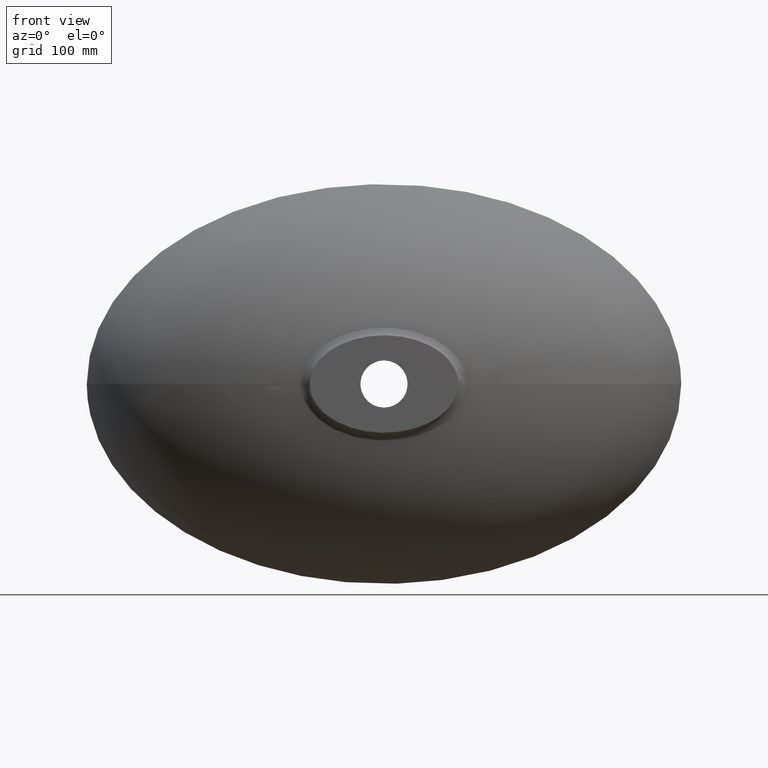
[diagram: clean part render]
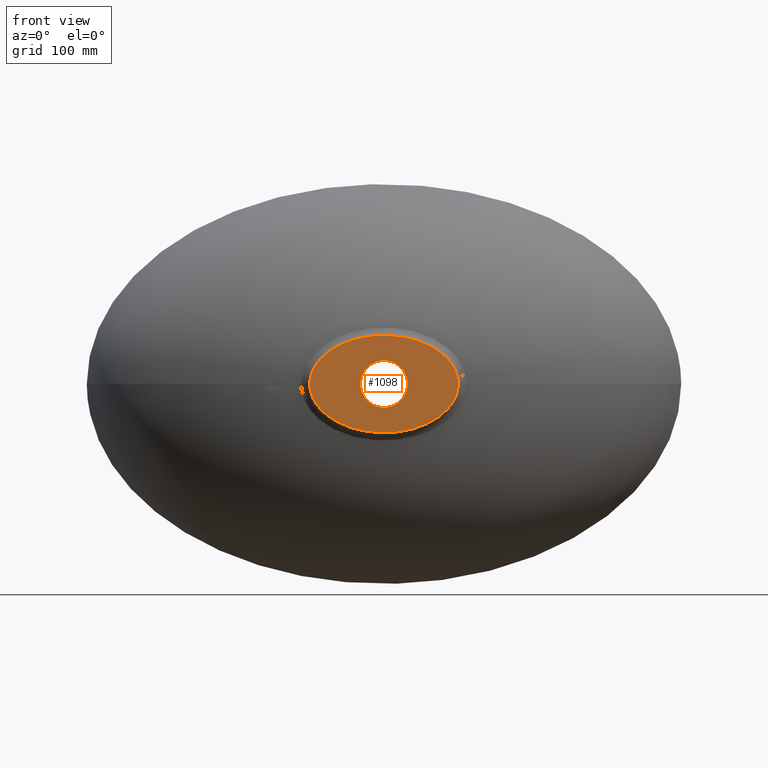
[diagram: same view with one face highlighted and labeled with its STEP entity id]
A machine part, front view. The second image highlights one B-rep face of the part: STEP entity #1098.
In plain terms, the highlighted planar face has unit normal (-0, -1, 0).
Its self-contained STEP definition (entity closure, byte-faithful):
#57 = ORIENTED_EDGE ( 'NONE', *, *, #1887, .T. ) ;
#448 = CARTESIAN_POINT ( 'NONE',  ( 0.0000000000000000000, -145.0000000000000300, 23.03999999999999900 ) ) ;
#499 = AXIS2_PLACEMENT_3D ( 'NONE', #2393, #2398, #2400 ) ;
#708 = FACE_BOUND ( 'NONE', #3675, .T. ) ;
#865 = CARTESIAN_POINT ( 'NONE',  ( -71.73329368483463500, -144.9999999999999700, -6.873038434622388100 ) ) ;
#874 = PLANE ( 'NONE',  #2423 ) ;
#875 = CARTESIAN_POINT ( 'NONE',  ( -22.99999999999999300, -144.9999999999999700, -6.559423143537301800E-015 ) ) ;
#879 = DIRECTION ( 'NONE',  ( -0.0000000000000000000, -1.000000000000000000, 0.0000000000000000000 ) ) ;
#885 = DIRECTION ( 'NONE',  ( -1.000000000000000000, 0.0000000000000000000, 4.709160951199664600E-017 ) ) ;
#970 = VERTEX_POINT ( 'NONE', #865 ) ;
#996 = AXIS2_PLACEMENT_3D ( 'NONE', #2513, #2012, #3732 ) ;
#1000 = EDGE_LOOP ( 'NONE', ( #2563, #57 ) ) ;
#1098 = ADVANCED_FACE ( 'NONE', ( #708, #3065 ), #874, .T. ) ;
#1289 = EDGE_CURVE ( 'NONE', #2176, #3726, #4129, .T. ) ;
#1698 = CARTESIAN_POINT ( 'NONE',  ( 71.70993164186684500, -144.9999999999999700, 6.976861751843846300 ) ) ;
#1702 = CIRCLE ( 'NONE', #499, 23.03999999999999900 ) ;
#1703 = CARTESIAN_POINT ( 'NONE',  ( 72.23258010372653400, -144.9999999999999700, 4.671644558902468900 ) ) ;
#1720 = CARTESIAN_POINT ( 'NONE',  ( 51.86703411855976500, -145.0000000000000000, -33.98184993974606300 ) ) ;
#1727 = CARTESIAN_POINT ( 'NONE',  ( 63.55359882152487900, -144.9999999999999700, -23.95946813404481900 ) ) ;
#1773 = CARTESIAN_POINT ( 'NONE',  ( 70.79787381892940300, -145.0000000000000300, -12.50100909895539500 ) ) ;
#1795 = CARTESIAN_POINT ( 'NONE',  ( -71.73329368483463500, -144.9999999999999700, -6.873038434622388100 ) ) ;
#1839 = CARTESIAN_POINT ( 'NONE',  ( 72.97706519826236600, -144.9999999999999700, -1.831180753533895300 ) ) ;
#1887 = EDGE_CURVE ( 'NONE', #2734, #970, #3273, .T. ) ;
#1929 = CARTESIAN_POINT ( 'NONE',  ( -72.17867248968366300, -144.9999999999999400, 5.620241344210579200 ) ) ;
#2012 = DIRECTION ( 'NONE',  ( 0.0000000000000000000, 1.000000000000000000, 0.0000000000000000000 ) ) ;
#2093 = CARTESIAN_POINT ( 'NONE',  ( -71.73329368483463500, -144.9999999999999700, -6.873038434622388100 ) ) ;
#2096 = CARTESIAN_POINT ( 'NONE',  ( -72.05680605547725300, -144.9999999999999700, -5.424330308448870300 ) ) ;
#2100 = CARTESIAN_POINT ( 'NONE',  ( -72.31114801642455300, -144.9999999999999700, -3.756334893012389200 ) ) ;
#2101 = CARTESIAN_POINT ( 'NONE',  ( -72.47446810728394000, -145.0000000000000000, -1.458451061544804700 ) ) ;
#2105 = CARTESIAN_POINT ( 'NONE',  ( -72.50000000000001400, -144.9999999999999700, -0.6250504549477823300 ) ) ;
#2107 = CARTESIAN_POINT ( 'NONE',  ( -72.50000000000001400, -144.9999999999999700, -4.228388472693467300E-015 ) ) ;
#2112 = CARTESIAN_POINT ( 'NONE',  ( -72.50000000000001400, -144.9999999999999700, 0.6250504549477627900 ) ) ;
#2114 = CARTESIAN_POINT ( 'NONE',  ( -72.47446810728394000, -144.9999999999999700, 1.458451061544785200 ) ) ;
#2120 = CARTESIAN_POINT ( 'NONE',  ( -70.31492215243579800, -144.9999999999999700, 13.26490636796133100 ) ) ;
#2127 = CARTESIAN_POINT ( 'NONE',  ( -63.55359882152487900, -145.0000000000000000, 23.95946813404481900 ) ) ;
#2129 = CARTESIAN_POINT ( 'NONE',  ( -51.86703411855977200, -144.9999999999999700, 33.98184993974604900 ) ) ;
#2134 = CARTESIAN_POINT ( 'NONE',  ( -36.56971452038421700, -144.9999999999999700, 41.63856474513698900 ) ) ;
#2153 = CARTESIAN_POINT ( 'NONE',  ( -19.08048757208981900, -144.9999999999999700, 46.38481388136756300 ) ) ;
#2162 = CARTESIAN_POINT ( 'NONE',  ( -7.775762455794477100E-015, -145.0000000000000300, 48.05759305931623300 ) ) ;
#2167 = CARTESIAN_POINT ( 'NONE',  ( 19.08048757208980100, -145.0000000000000000, 46.38481388136754200 ) ) ;
#2170 = CARTESIAN_POINT ( 'NONE',  ( 36.56971452038418800, -145.0000000000000000, 41.63856474513701000 ) ) ;
#2176 = VERTEX_POINT ( 'NONE', #448 ) ;
#2183 = CARTESIAN_POINT ( 'NONE',  ( 63.55359882152489300, -145.0000000000000000, 23.95946813404481500 ) ) ;
#2189 = CARTESIAN_POINT ( 'NONE',  ( 19.08048757208979800, -145.0000000000000000, -46.38481388136756300 ) ) ;
#2203 = CARTESIAN_POINT ( 'NONE',  ( -1.903791252248765400E-014, -144.9999999999999700, -48.05759305931620400 ) ) ;
#2213 = CARTESIAN_POINT ( 'NONE',  ( -19.08048757208984000, -145.0000000000000300, -46.38481388136757000 ) ) ;
#2216 = CARTESIAN_POINT ( 'NONE',  ( -36.56971452038421700, -145.0000000000000300, -41.63856474513700300 ) ) ;
#2225 = CARTESIAN_POINT ( 'NONE',  ( -51.86703411855980800, -144.9999999999999700, -33.98184993974606300 ) ) ;
#2228 = CARTESIAN_POINT ( 'NONE',  ( -63.55359882152489300, -144.9999999999999700, -23.95946813404481900 ) ) ;
#2232 = CARTESIAN_POINT ( 'NONE',  ( -69.46459324681804000, -144.9999999999999700, -14.60989381458150200 ) ) ;
#2242 = CARTESIAN_POINT ( 'NONE',  ( -71.32183944431804400, -144.9999999999999700, -8.715555617507755300 ) ) ;
#2393 = CARTESIAN_POINT ( 'NONE',  ( 0.0000000000000000000, -145.0000000000000300, 0.0000000000000000000 ) ) ;
#2398 = DIRECTION ( 'NONE',  ( 0.0000000000000000000, 1.000000000000000000, 0.0000000000000000000 ) ) ;
#2400 = DIRECTION ( 'NONE',  ( 0.0000000000000000000, 0.0000000000000000000, 1.000000000000000000 ) ) ;
#2412 = CARTESIAN_POINT ( 'NONE',  ( 2.821586225235501900E-015, -145.0000000000000300, -23.03999999999999900 ) ) ;
#2423 = AXIS2_PLACEMENT_3D ( 'NONE', #875, #879, #885 ) ;
#2446 = ORIENTED_EDGE ( 'NONE', *, *, #1289, .T. ) ;
#2513 = CARTESIAN_POINT ( 'NONE',  ( 0.0000000000000000000, -145.0000000000000300, 0.0000000000000000000 ) ) ;
#2550 = CARTESIAN_POINT ( 'NONE',  ( 51.86703411855975800, -145.0000000000000000, 33.98184993974606300 ) ) ;
#2563 = ORIENTED_EDGE ( 'NONE', *, *, #2615, .T. ) ;
#2615 = EDGE_CURVE ( 'NONE', #970, #2734, #2917, .T. ) ;
#2734 = VERTEX_POINT ( 'NONE', #3980 ) ;
#2917 = B_SPLINE_CURVE_WITH_KNOTS ( 'NONE', 3,
 ( #1795, #2242, #2232, #2228, #2225, #2216, #2213, #2203, #2189, #3017, #1720, #1727, #1773, #1839, #1703, #1698 ),
 .UNSPECIFIED., .F., .F.,
 ( 4, 1, 1, 1, 1, 1, 1, 1, 1, 1, 1, 1, 1, 4 ),
 ( 0.02300576269863222100, 0.04166666666666663000, 0.08333333333333337000, 0.1250000000000001100, 0.1666666666666666300, 0.2083333333333333700, 0.2500000000000000000, 0.2916666666666666300, 0.3333333333333333700, 0.3750000000000000000, 0.4166666666666666300, 0.4583333333333333700, 0.5000000000020915500, 0.5233563372860677900 ),
 .UNSPECIFIED. ) ;
#3017 = CARTESIAN_POINT ( 'NONE',  ( 36.56971452038419600, -145.0000000000000000, -41.63856474513701000 ) ) ;
#3065 = FACE_OUTER_BOUND ( 'NONE', #1000, .T. ) ;
#3210 = EDGE_CURVE ( 'NONE', #3726, #2176, #1702, .T. ) ;
#3273 = B_SPLINE_CURVE_WITH_KNOTS ( 'NONE', 3,
 ( #3737, #3899, #3740, #2183, #2550, #2170, #2167, #2162, #2153, #2134, #2129, #2127, #2120, #1929, #2114, #2112, #2107, #2105, #2101, #2100, #2096, #2093 ),
 .UNSPECIFIED., .F., .F.,
 ( 4, 1, 1, 1, 1, 1, 1, 1, 1, 1, 1, 1, 1, 1, 3, 1, 1, 4 ),
 ( 0.5233563372860677900, 0.5416666666666667400, 0.5833333333333332600, 0.6250000000000000000, 0.6666666666666667400, 0.7083333333333332600, 0.7500000000009738900, 0.7916666666666666300, 0.8333333333333333700, 0.8750000000000000000, 0.9166666666666666300, 0.9583333333333333700, 0.9916666666666667000, 0.9937500000000000200, 1.000000000000000000, 1.006250000000000100, 1.008333333333333300, 1.023005762698632200 ),
 .UNSPECIFIED. ) ;
#3675 = EDGE_LOOP ( 'NONE', ( #2446, #4012 ) ) ;
#3726 = VERTEX_POINT ( 'NONE', #2412 ) ;
#3732 = DIRECTION ( 'NONE',  ( 0.0000000000000000000, 0.0000000000000000000, 1.000000000000000000 ) ) ;
#3737 = CARTESIAN_POINT ( 'NONE',  ( 71.70993164186684500, -144.9999999999999700, 6.976861751843846300 ) ) ;
#3740 = CARTESIAN_POINT ( 'NONE',  ( 69.44427597716870100, -144.9999999999999400, 14.64203017081660400 ) ) ;
#3899 = CARTESIAN_POINT ( 'NONE',  ( 71.30019849875628800, -144.9999999999999400, 8.784049479242110400 ) ) ;
#3980 = CARTESIAN_POINT ( 'NONE',  ( 71.70993164186684500, -144.9999999999999700, 6.976861751843846300 ) ) ;
#4012 = ORIENTED_EDGE ( 'NONE', *, *, #3210, .T. ) ;
#4129 = CIRCLE ( 'NONE', #996, 23.03999999999999900 ) ;